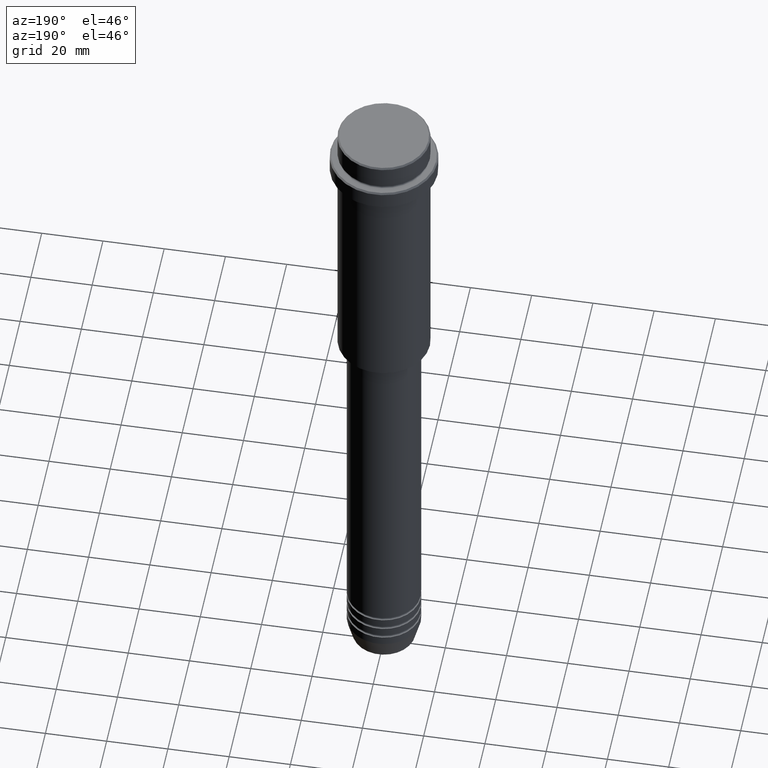
[diagram: clean part render]
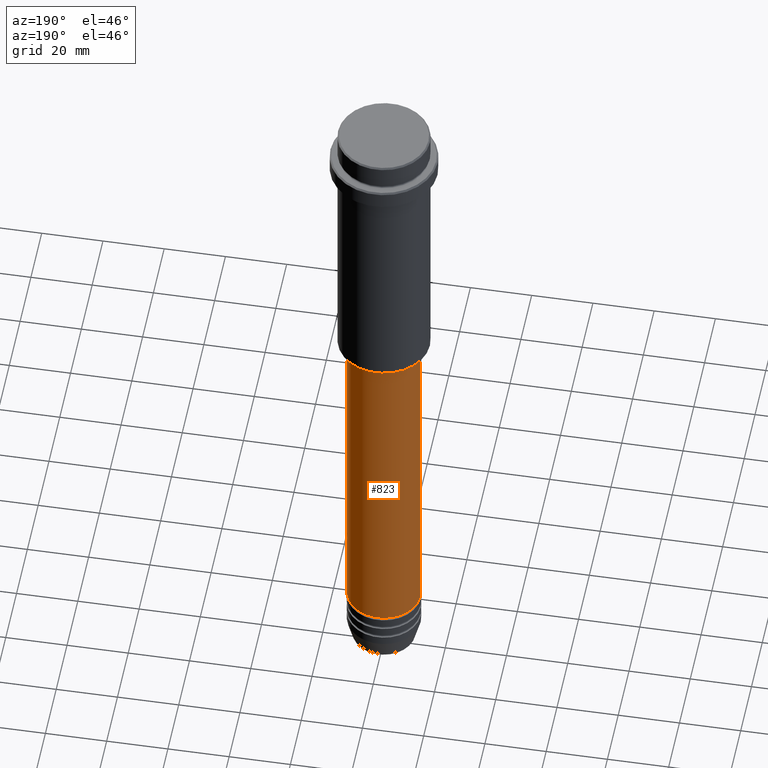
[diagram: same view with one face highlighted and labeled with its STEP entity id]
A machine part, auxiliary view. The second image highlights one B-rep face of the part: STEP entity #823.
In plain terms, the highlighted cylindrical surface (partial cylindrical patch) has radius 12 mm, axis along (-0, -0, 1).
Its self-contained STEP definition (entity closure, byte-faithful):
#12 = CARTESIAN_POINT ( 'NONE',  ( 11.99999999999999822, 0.000000000000000000, -95.99999999999997158 ) ) ;
#93 = CYLINDRICAL_SURFACE ( 'NONE', #1115, 12.00000000000000000 ) ;
#123 = CIRCLE ( 'NONE', #585, 11.99999999999999822 ) ;
#125 = CARTESIAN_POINT ( 'NONE',  ( -11.99999999999999822, 1.469576158976823750E-15, -95.99999999999997158 ) ) ;
#144 = AXIS2_PLACEMENT_3D ( 'NONE', #937, #407, #1264 ) ;
#163 = EDGE_CURVE ( 'NONE', #1133, #1330, #1237, .T. ) ;
#176 = ORIENTED_EDGE ( 'NONE', *, *, #1015, .F. ) ;
#181 = CARTESIAN_POINT ( 'NONE',  ( 0.000000000000000000, 0.000000000000000000, 0.000000000000000000 ) ) ;
#247 = CARTESIAN_POINT ( 'NONE',  ( -12.00000000000000000, 1.469576158976823947E-15, 0.000000000000000000 ) ) ;
#339 = ORIENTED_EDGE ( 'NONE', *, *, #1340, .F. ) ;
#350 = EDGE_CURVE ( 'NONE', #553, #1133, #1156, .T. ) ;
#407 = DIRECTION ( 'NONE',  ( -0.000000000000000000, -0.000000000000000000, 1.000000000000000000 ) ) ;
#459 = CARTESIAN_POINT ( 'NONE',  ( 0.000000000000000000, 0.000000000000000000, -95.99999999999997158 ) ) ;
#553 = VERTEX_POINT ( 'NONE', #1234 ) ;
#569 = DIRECTION ( 'NONE',  ( 1.000000000000000000, 0.000000000000000000, 0.000000000000000000 ) ) ;
#585 = AXIS2_PLACEMENT_3D ( 'NONE', #459, #653, #569 ) ;
#590 = ORIENTED_EDGE ( 'NONE', *, *, #163, .T. ) ;
#622 = DIRECTION ( 'NONE',  ( 1.000000000000000000, 0.000000000000000000, 0.000000000000000000 ) ) ;
#653 = DIRECTION ( 'NONE',  ( -0.000000000000000000, -0.000000000000000000, 1.000000000000000000 ) ) ;
#782 = DIRECTION ( 'NONE',  ( -0.000000000000000000, -0.000000000000000000, 1.000000000000000000 ) ) ;
#799 = CARTESIAN_POINT ( 'NONE',  ( 12.00000000000000000, 0.000000000000000000, 0.000000000000000000 ) ) ;
#823 = ADVANCED_FACE ( 'NONE', ( #1169 ), #93, .T. ) ;
#828 = LINE ( 'NONE', #799, #1412 ) ;
#867 = VERTEX_POINT ( 'NONE', #12 ) ;
#937 = CARTESIAN_POINT ( 'NONE',  ( 0.000000000000000000, 0.000000000000000000, -210.9999999999998579 ) ) ;
#1015 = EDGE_CURVE ( 'NONE', #553, #867, #828, .T. ) ;
#1065 = DIRECTION ( 'NONE',  ( -0.000000000000000000, -0.000000000000000000, 1.000000000000000000 ) ) ;
#1115 = AXIS2_PLACEMENT_3D ( 'NONE', #181, #1065, #622 ) ;
#1133 = VERTEX_POINT ( 'NONE', #1288 ) ;
#1137 = VECTOR ( 'NONE', #782, 1000.000000000000000 ) ;
#1156 = CIRCLE ( 'NONE', #144, 12.00000000000000000 ) ;
#1169 = FACE_OUTER_BOUND ( 'NONE', #1355, .T. ) ;
#1234 = CARTESIAN_POINT ( 'NONE',  ( 12.00000000000000000, 0.000000000000000000, -210.9999999999998579 ) ) ;
#1237 = LINE ( 'NONE', #247, #1137 ) ;
#1264 = DIRECTION ( 'NONE',  ( 1.000000000000000000, 0.000000000000000000, 0.000000000000000000 ) ) ;
#1288 = CARTESIAN_POINT ( 'NONE',  ( -12.00000000000000000, 1.469576158976823947E-15, -210.9999999999998579 ) ) ;
#1305 = ORIENTED_EDGE ( 'NONE', *, *, #350, .T. ) ;
#1330 = VERTEX_POINT ( 'NONE', #125 ) ;
#1340 = EDGE_CURVE ( 'NONE', #867, #1330, #123, .T. ) ;
#1354 = DIRECTION ( 'NONE',  ( -0.000000000000000000, -0.000000000000000000, 1.000000000000000000 ) ) ;
#1355 = EDGE_LOOP ( 'NONE', ( #1305, #590, #339, #176 ) ) ;
#1412 = VECTOR ( 'NONE', #1354, 1000.000000000000000 ) ;